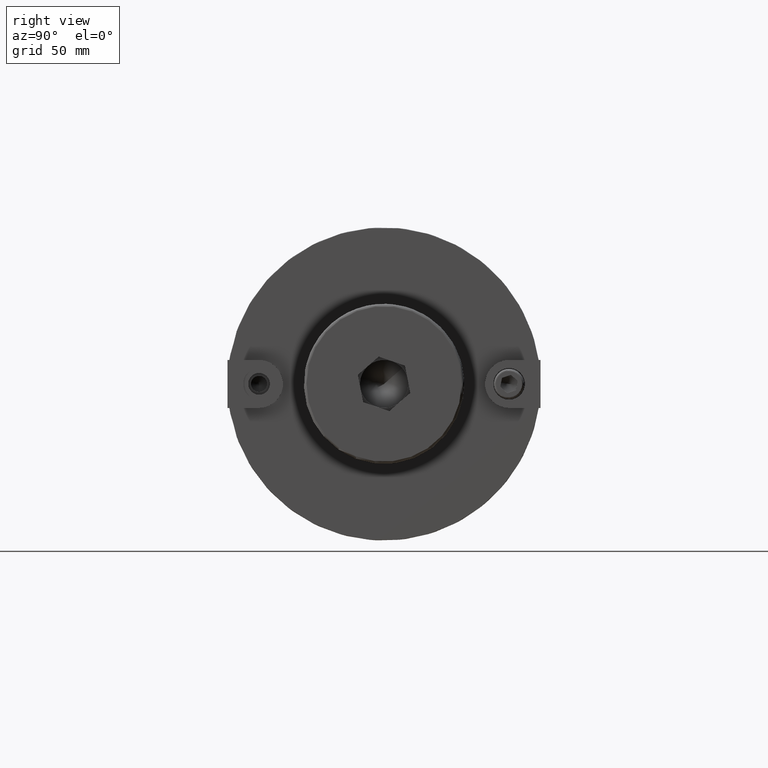
[diagram: clean part render]
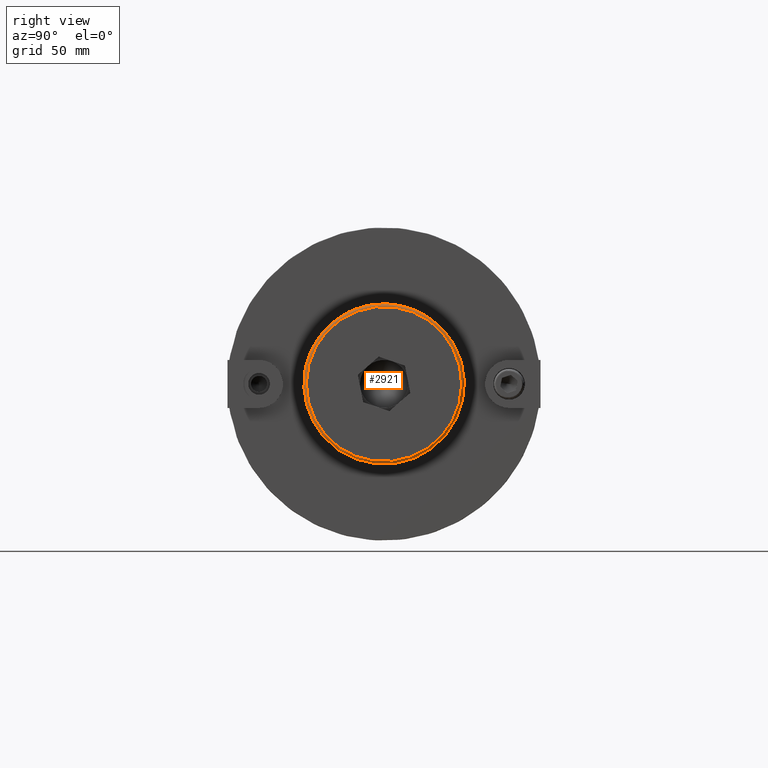
[diagram: same view with one face highlighted and labeled with its STEP entity id]
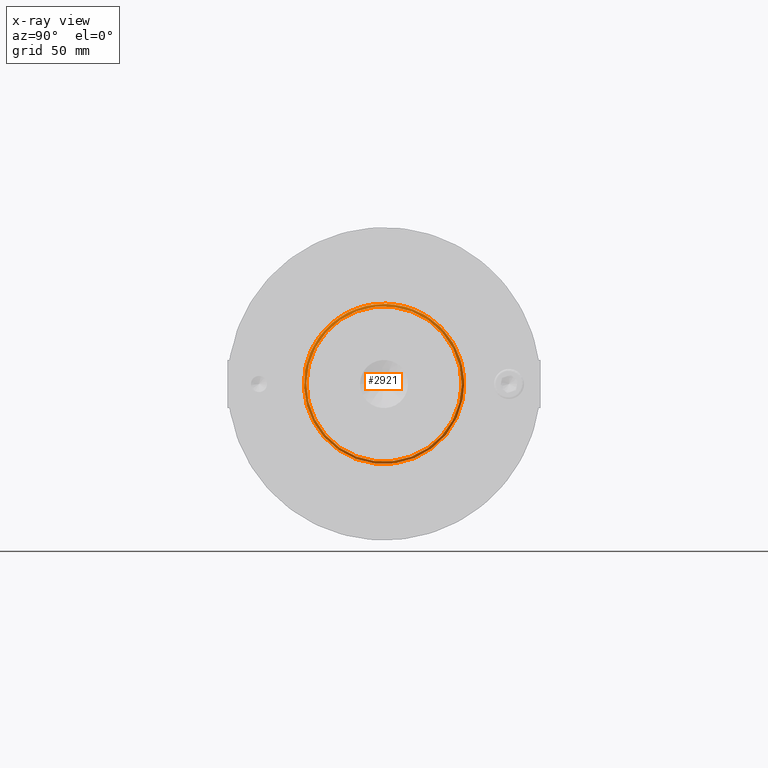
[diagram: x-ray of the same camera — body ghosted, the highlighted face saturated]
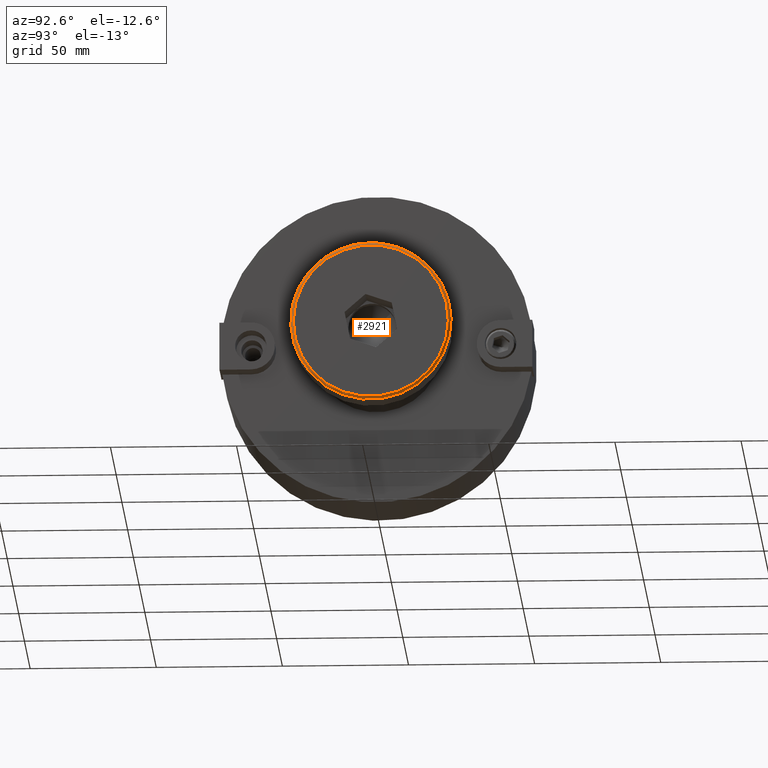
[diagram: same view with one face highlighted and labeled with its STEP entity id]
A machine part, right view. The second image highlights one B-rep face of the part: STEP entity #2921.
The next image is the same camera in x-ray: the body ghosted, the highlighted face saturated — about 0% of this face is hidden behind the body in this view.
A second angle (auxiliary view) of the same face is appended — the face is thin or edge-on in the first view.
In plain terms, the highlighted toroidal blend (fillet) surface has major radius 30.75 mm and minor (blend) radius 1 mm.
Its self-contained STEP definition (entity closure, byte-faithful):
#487=TOROIDAL_SURFACE('',#3386,30.75,1.);
#781=CIRCLE('',#3384,31.75);
#782=CIRCLE('',#3385,31.75);
#783=CIRCLE('',#3387,1.);
#784=CIRCLE('',#3388,30.75);
#926=FACE_OUTER_BOUND('',#1096,.T.);
#1096=EDGE_LOOP('',(#2700,#2701,#2702,#2703,#2704));
#1650=VERTEX_POINT('',#5777);
#1651=VERTEX_POINT('',#5779);
#1652=VERTEX_POINT('',#5783);
#2002=EDGE_CURVE('',#1651,#1650,#781,.T.);
#2003=EDGE_CURVE('',#1650,#1651,#782,.T.);
#2004=EDGE_CURVE('',#1651,#1652,#783,.T.);
#2005=EDGE_CURVE('',#1652,#1652,#784,.T.);
#2700=ORIENTED_EDGE('',*,*,#2002,.T.);
#2701=ORIENTED_EDGE('',*,*,#2003,.T.);
#2702=ORIENTED_EDGE('',*,*,#2004,.T.);
#2703=ORIENTED_EDGE('',*,*,#2005,.T.);
#2704=ORIENTED_EDGE('',*,*,#2004,.F.);
#2921=ADVANCED_FACE('',(#926),#487,.T.);
#3384=AXIS2_PLACEMENT_3D('',#5780,#4188,#4189);
#3385=AXIS2_PLACEMENT_3D('',#5781,#4190,#4191);
#3386=AXIS2_PLACEMENT_3D('',#5782,#4192,#4193);
#3387=AXIS2_PLACEMENT_3D('',#5784,#4194,#4195);
#3388=AXIS2_PLACEMENT_3D('',#5785,#4196,#4197);
#4188=DIRECTION('center_axis',(-1.,0.,0.));
#4189=DIRECTION('ref_axis',(0.,-1.,1.83697019872103E-16));
#4190=DIRECTION('center_axis',(-1.,0.,0.));
#4191=DIRECTION('ref_axis',(0.,-1.,1.83697019872103E-16));
#4192=DIRECTION('center_axis',(1.,0.,0.));
#4193=DIRECTION('ref_axis',(0.,0.,-1.));
#4194=DIRECTION('center_axis',(0.,-1.,-1.22464679914735E-16));
#4195=DIRECTION('ref_axis',(0.,-1.22464679914735E-16,1.));
#4196=DIRECTION('center_axis',(1.,0.,0.));
#4197=DIRECTION('ref_axis',(0.,-1.,1.83697019872103E-16));
#5777=CARTESIAN_POINT('',(1.,-31.75,-3.88825358729285E-15));
#5779=CARTESIAN_POINT('',(1.,-3.88825358729285E-15,31.75));
#5780=CARTESIAN_POINT('Origin',(1.,0.,0.));
#5781=CARTESIAN_POINT('Origin',(1.,0.,0.));
#5782=CARTESIAN_POINT('Origin',(1.,0.,0.));
#5783=CARTESIAN_POINT('',(0.,-3.76578890737811E-15,30.75));
#5784=CARTESIAN_POINT('Origin',(1.,-3.76578890737811E-15,30.75));
#5785=CARTESIAN_POINT('Origin',(0.,0.,0.));